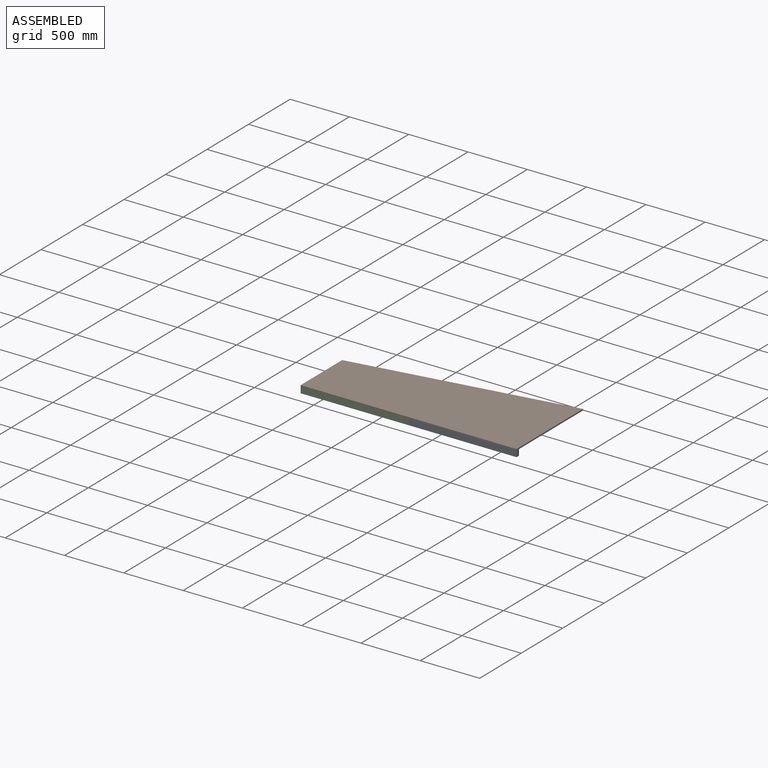
[diagram: assembled view]
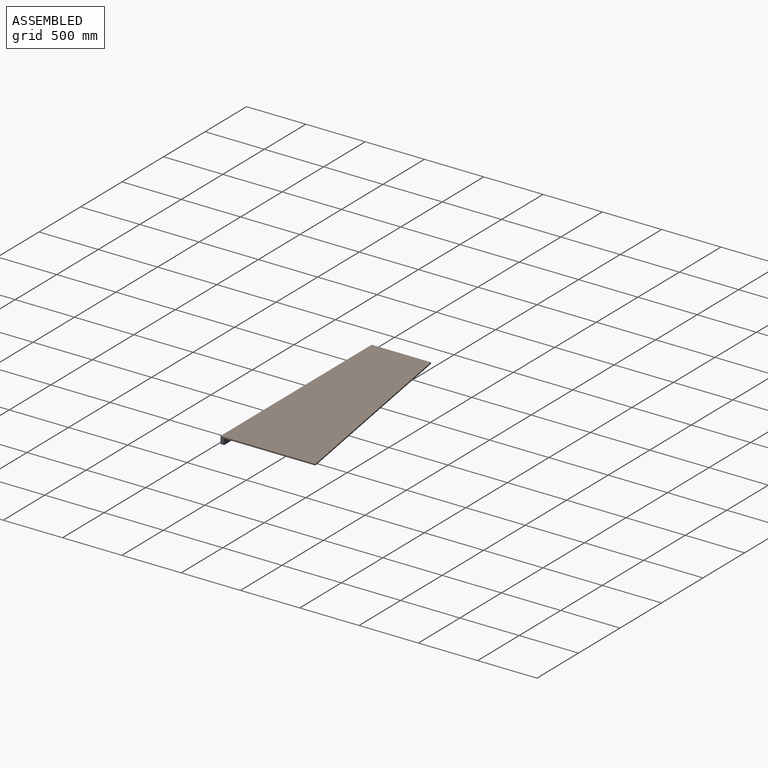
[diagram: assembled view, second angle]
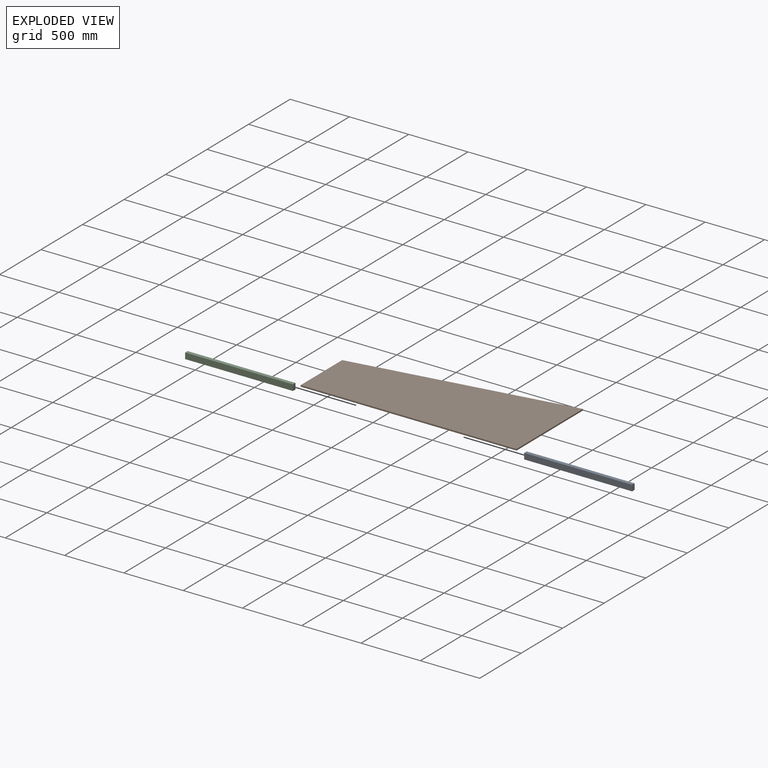
[diagram: exploded view]
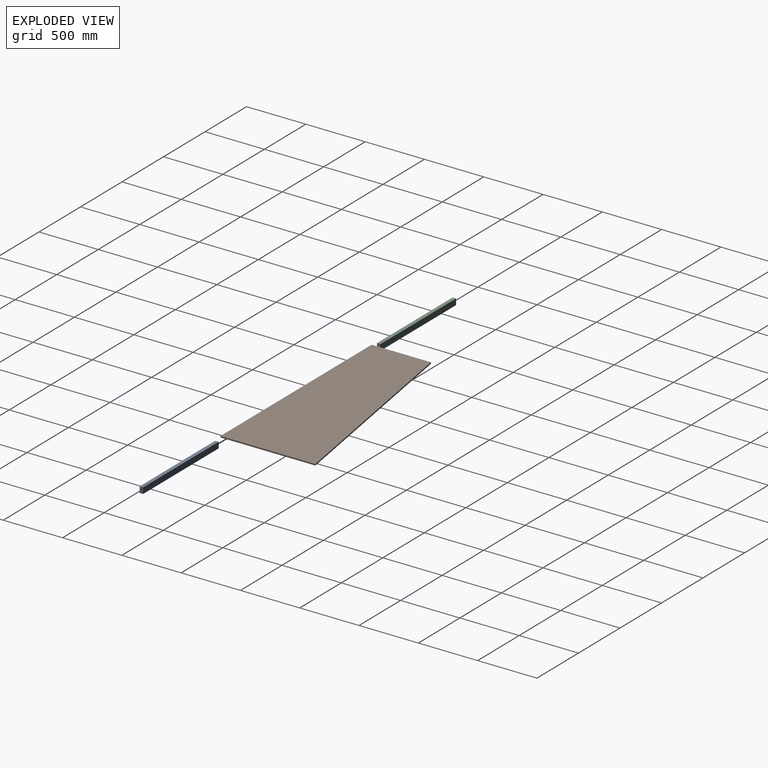
[diagram: exploded view, second angle]
ASSEMBLY  parts=3 mates=4
PART A: 6 faces, bbox 910x30x50 mm
  f0: plane 910x50mm, normal (0,-1,0), area 45500mm2, adj f1,f3,f4,f5
  f1: plane 910x30mm, normal (0,0,-1), area 27300mm2, adj f0,f2,f4,f5
  f2: plane 910x50mm, normal (0,1,0), area 45500mm2, adj f1,f3,f4,f5
  f3: plane 910x30mm, normal (0,0,1), area 27300mm2, adj f0,f2,f4,f5
  f4: plane 50x30mm, normal (1,0,0), area 1500mm2, adj f0,f1,f2,f3
  f5: plane 50x30mm, normal (-1,0,0), area 1500mm2, adj f0,f1,f2,f3
PART B: 6 faces, bbox 1820x800x12 mm
  f0: plane 500x12mm, normal (-1,0,0), area 6000mm2, adj f1,f3,f4,f5
  f1: plane 1820x12mm, normal (0,-1,0), area 21840mm2, adj f0,f2,f4,f5
  f2: plane 800x12mm, normal (1,0,0), area 9600mm2, adj f1,f3,f4,f5
  f3: plane 1820x300mm, normal (-0.16,0.99,0), area 22134.7mm2, adj f0,f2,f4,f5
  f4: plane 1820x800mm, normal (0,0,1), area 1183000mm2, adj f0,f1,f2,f3
  f5: plane 1820x800mm, normal (0,0,-1), area 1183000mm2, adj f0,f1,f2,f3
PART C: same geometry as A
PLACE A t=(263.08,-447.06,122.87)mm
PLACE B t=(263.08,-47.06,172.87)mm fixed
PLACE C t=(-646.92,-447.06,122.87)mm
MATE planar C.f5 <-> B.f0  axis (-1,0,0) through (-646.92,-432.06,147.87)mm
MATE fastened B.f2 <-> A.f4  axis (1,0,0) through (1173.08,-447.06,172.87)mm
MATE planar C.f3 <-> B.f5  axis (0,0,1) through (-191.92,-432.06,172.87)mm
MATE planar B.f1 <-> C.f0  axis (0,-1,0) through (263.08,-447.06,178.87)mm
